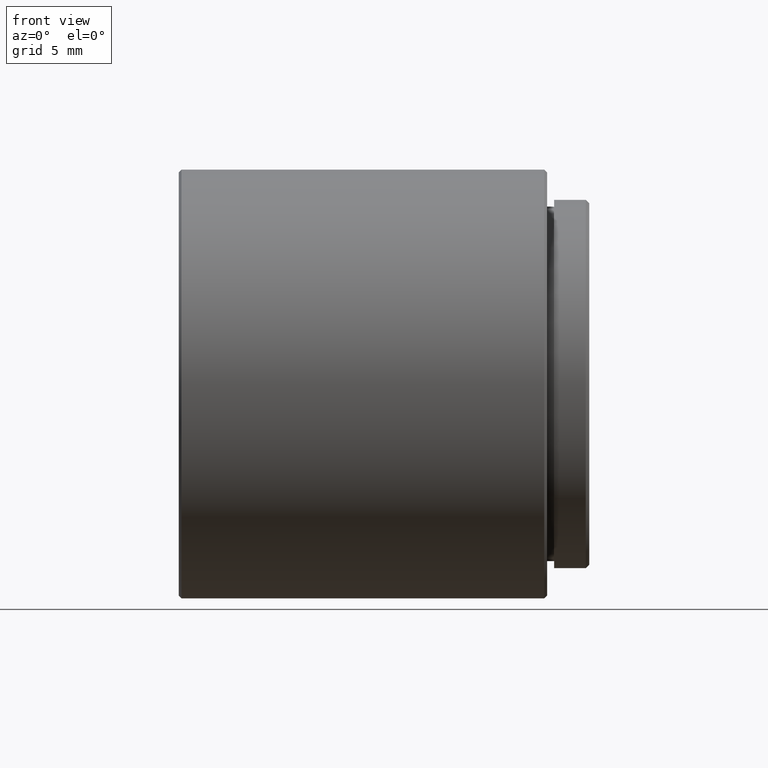
[diagram: clean part render]
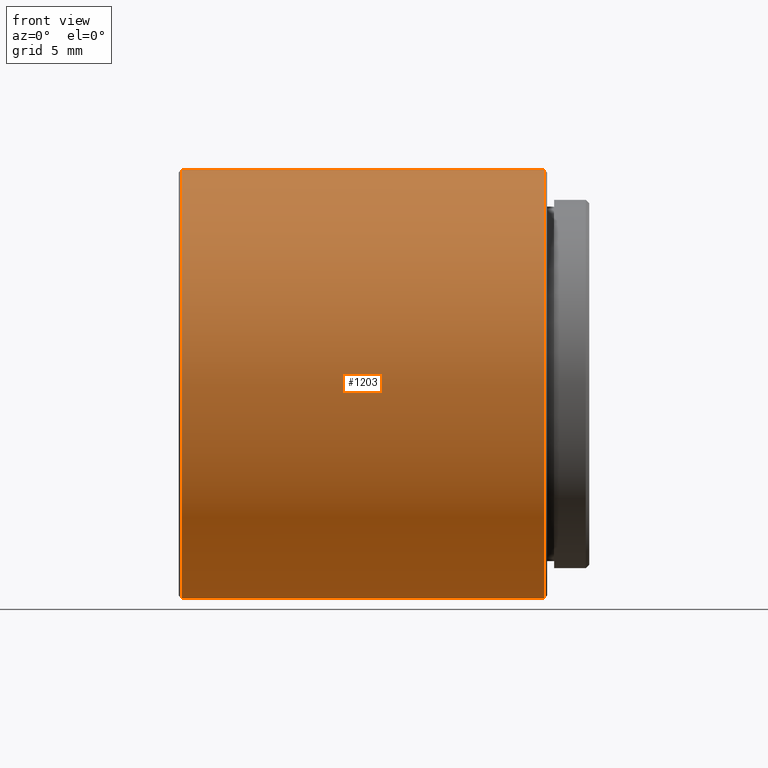
[diagram: same view with one face highlighted and labeled with its STEP entity id]
A machine part, front view. The second image highlights one B-rep face of the part: STEP entity #1203.
In plain terms, the highlighted cylindrical surface (partial cylindrical patch) has radius 15.25 mm, axis along (-1, -0, -0).
Its self-contained STEP definition (entity closure, byte-faithful):
#4 = VECTOR ( 'NONE', #1523, 1000.000000000000000 ) ;
#82 = VERTEX_POINT ( 'NONE', #640 ) ;
#83 = LINE ( 'NONE', #1529, #4 ) ;
#189 = ORIENTED_EDGE ( 'NONE', *, *, #1554, .T. ) ;
#307 = DIRECTION ( 'NONE',  ( -1.000000000000000000, 0.000000000000000000, 0.000000000000000000 ) ) ;
#308 = FACE_OUTER_BOUND ( 'NONE', #494, .T. ) ;
#324 = ORIENTED_EDGE ( 'NONE', *, *, #457, .T. ) ;
#404 = AXIS2_PLACEMENT_3D ( 'NONE', #886, #307, #1010 ) ;
#417 = CYLINDRICAL_SURFACE ( 'NONE', #1582, 15.25000000000000000 ) ;
#457 = EDGE_CURVE ( 'NONE', #1280, #990, #490, .T. ) ;
#490 = CIRCLE ( 'NONE', #860, 15.25000000000000000 ) ;
#494 = EDGE_LOOP ( 'NONE', ( #1170, #1261, #189, #324 ) ) ;
#606 = EDGE_CURVE ( 'NONE', #82, #759, #746, .T. ) ;
#614 = CARTESIAN_POINT ( 'NONE',  ( 3.525999999999982926, -20.10857142857141966, 0.000000000000000000 ) ) ;
#640 = CARTESIAN_POINT ( 'NONE',  ( 3.325999999999985857, -20.10857142857141611, -15.25000000000000000 ) ) ;
#746 = CIRCLE ( 'NONE', #404, 15.25000000000000000 ) ;
#759 = VERTEX_POINT ( 'NONE', #1333 ) ;
#822 = CARTESIAN_POINT ( 'NONE',  ( -22.47400000000001086, -20.10857142857141966, -15.25000000000000000 ) ) ;
#860 = AXIS2_PLACEMENT_3D ( 'NONE', #1477, #1099, #868 ) ;
#868 = DIRECTION ( 'NONE',  ( 0.000000000000000000, 0.000000000000000000, 1.000000000000000000 ) ) ;
#870 = CARTESIAN_POINT ( 'NONE',  ( -22.47400000000001086, -20.10857142857141611, 15.25000000000000000 ) ) ;
#872 = EDGE_CURVE ( 'NONE', #82, #990, #1525, .T. ) ;
#886 = CARTESIAN_POINT ( 'NONE',  ( 3.325999999999985857, -20.10857142857141966, 0.000000000000000000 ) ) ;
#990 = VERTEX_POINT ( 'NONE', #822 ) ;
#1010 = DIRECTION ( 'NONE',  ( 0.000000000000000000, 0.000000000000000000, -1.000000000000000000 ) ) ;
#1099 = DIRECTION ( 'NONE',  ( 1.000000000000000000, 0.000000000000000000, 0.000000000000000000 ) ) ;
#1106 = DIRECTION ( 'NONE',  ( 0.000000000000000000, 0.000000000000000000, 1.000000000000000000 ) ) ;
#1170 = ORIENTED_EDGE ( 'NONE', *, *, #872, .F. ) ;
#1203 = ADVANCED_FACE ( 'NONE', ( #308 ), #417, .T. ) ;
#1261 = ORIENTED_EDGE ( 'NONE', *, *, #606, .T. ) ;
#1280 = VERTEX_POINT ( 'NONE', #870 ) ;
#1333 = CARTESIAN_POINT ( 'NONE',  ( 3.325999999999985857, -20.10857142857141966, 15.25000000000000000 ) ) ;
#1347 = DIRECTION ( 'NONE',  ( -1.000000000000000000, -0.000000000000000000, -0.000000000000000000 ) ) ;
#1477 = CARTESIAN_POINT ( 'NONE',  ( -22.47400000000001086, -20.10857142857141966, 0.000000000000000000 ) ) ;
#1480 = CARTESIAN_POINT ( 'NONE',  ( 3.525999999999982926, -20.10857142857141611, -15.25000000000000000 ) ) ;
#1481 = DIRECTION ( 'NONE',  ( -1.000000000000000000, -0.000000000000000000, -0.000000000000000000 ) ) ;
#1484 = VECTOR ( 'NONE', #1481, 1000.000000000000000 ) ;
#1523 = DIRECTION ( 'NONE',  ( -1.000000000000000000, -0.000000000000000000, -0.000000000000000000 ) ) ;
#1525 = LINE ( 'NONE', #1480, #1484 ) ;
#1529 = CARTESIAN_POINT ( 'NONE',  ( 3.525999999999982926, -20.10857142857141966, 15.25000000000000000 ) ) ;
#1554 = EDGE_CURVE ( 'NONE', #759, #1280, #83, .T. ) ;
#1582 = AXIS2_PLACEMENT_3D ( 'NONE', #614, #1347, #1106 ) ;